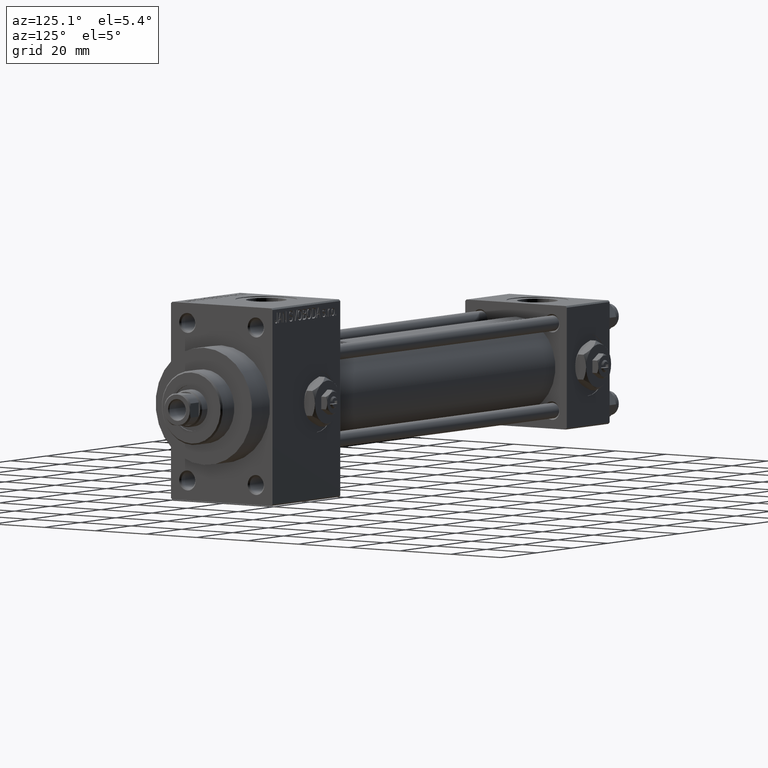
[diagram: clean part render]
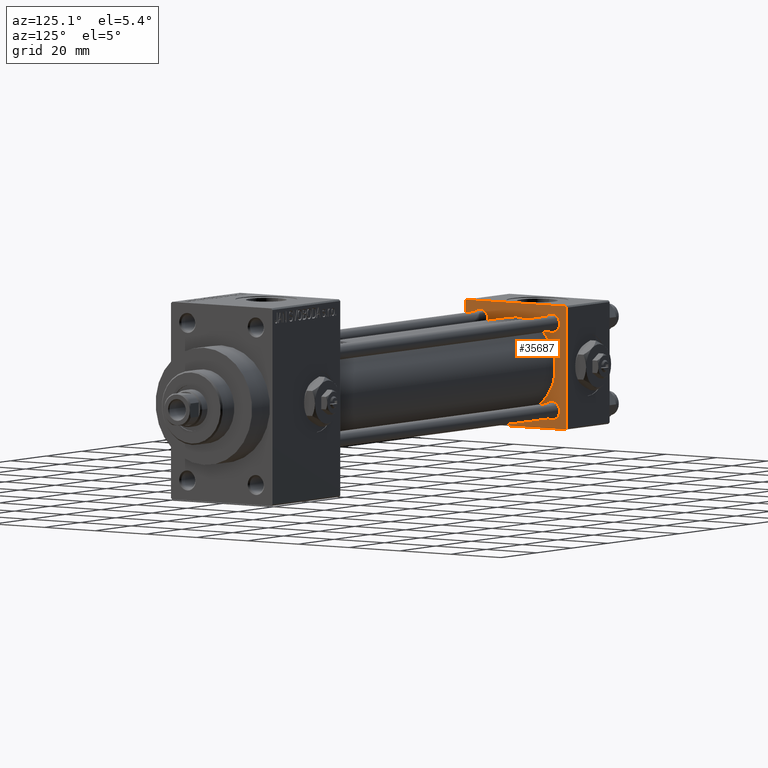
[diagram: same view with one face highlighted and labeled with its STEP entity id]
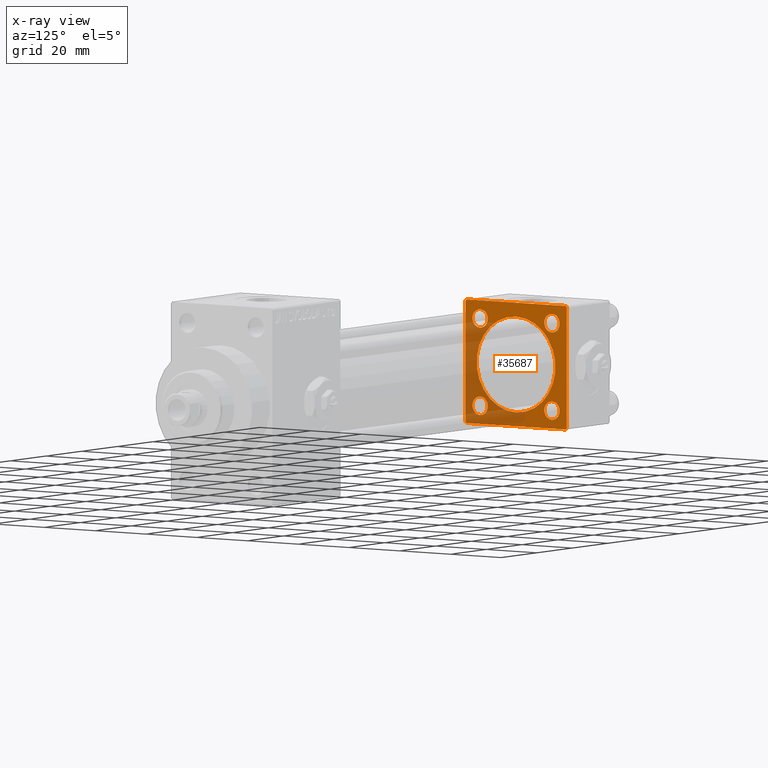
[diagram: x-ray of the same camera — body ghosted, the highlighted face saturated]
A machine part, auxiliary view. The second image highlights one B-rep face of the part: STEP entity #35687.
The next image is the same camera in x-ray: the body ghosted, the highlighted face saturated — about 36% of this face is hidden behind the body in this view.
In plain terms, the highlighted planar face has unit normal (-1, 0, 0).
Its self-contained STEP definition (entity closure, byte-faithful):
#667 = ORIENTED_EDGE ( 'NONE', *, *, #46555, .T. ) ;
#762 = ORIENTED_EDGE ( 'NONE', *, *, #26382, .T. ) ;
#957 = EDGE_CURVE ( 'NONE', #39708, #27179, #2211, .T. ) ;
#1234 = EDGE_CURVE ( 'NONE', #23255, #25400, #17363, .T. ) ;
#2211 = LINE ( 'NONE', #32489, #32335 ) ;
#2429 = CIRCLE ( 'NONE', #15078, 3.000000000000004441 ) ;
#2982 = DIRECTION ( 'NONE',  ( -1.000000000000000000, -0.000000000000000000, -0.000000000000000000 ) ) ;
#3820 = FACE_BOUND ( 'NONE', #35985, .T. ) ;
#3824 = AXIS2_PLACEMENT_3D ( 'NONE', #44102, #6125, #36394 ) ;
#4351 = CARTESIAN_POINT ( 'NONE',  ( 24.00000000000000000, -19.50000000000000711, -20.00000000000000000 ) ) ;
#4491 = CARTESIAN_POINT ( 'NONE',  ( 24.00000000000000000, 14.14999999999999858, 14.15000000000000036 ) ) ;
#4622 = CARTESIAN_POINT ( 'NONE',  ( 24.00000000000000000, 20.00000000000000000, 19.49999999999999289 ) ) ;
#4668 = DIRECTION ( 'NONE',  ( -0.000000000000000000, 0.7071067811865524577, 0.7071067811865426878 ) ) ;
#5135 = DIRECTION ( 'NONE',  ( -1.000000000000000000, -0.000000000000000000, -0.000000000000000000 ) ) ;
#5472 = CARTESIAN_POINT ( 'NONE',  ( 23.99999999999999289, -2.602085213965210642E-15, 15.50000000000000000 ) ) ;
#6125 = DIRECTION ( 'NONE',  ( -1.000000000000000000, -0.000000000000000000, -0.000000000000000000 ) ) ;
#6942 = DIRECTION ( 'NONE',  ( 0.000000000000000000, 0.000000000000000000, 1.000000000000000000 ) ) ;
#7092 = EDGE_LOOP ( 'NONE', ( #17830, #43753 ) ) ;
#7520 = FACE_BOUND ( 'NONE', #24920, .T. ) ;
#7760 = CARTESIAN_POINT ( 'NONE',  ( 24.00000000000000000, 0.000000000000000000, 0.000000000000000000 ) ) ;
#8373 = EDGE_CURVE ( 'NONE', #41519, #47202, #39743, .T. ) ;
#9520 = CARTESIAN_POINT ( 'NONE',  ( 24.00000000000000000, -14.14999999999999503, 17.14999999999998082 ) ) ;
#10051 = CIRCLE ( 'NONE', #10826, 15.50000000000000000 ) ;
#10750 = PLANE ( 'NONE',  #32296 ) ;
#10826 = AXIS2_PLACEMENT_3D ( 'NONE', #30664, #45802, #26928 ) ;
#10867 = EDGE_LOOP ( 'NONE', ( #20250, #17760 ) ) ;
#11307 = VERTEX_POINT ( 'NONE', #31656 ) ;
#11684 = AXIS2_PLACEMENT_3D ( 'NONE', #4491, #19605, #39704 ) ;
#12083 = LINE ( 'NONE', #27230, #47336 ) ;
#12197 = LINE ( 'NONE', #38792, #16416 ) ;
#12659 = CARTESIAN_POINT ( 'NONE',  ( 24.00000000000000000, -20.00000000000000355, 19.49999999999998224 ) ) ;
#13108 = DIRECTION ( 'NONE',  ( 0.000000000000000000, -0.7071067811865425767, 0.7071067811865525687 ) ) ;
#13686 = DIRECTION ( 'NONE',  ( 0.000000000000000000, 0.000000000000000000, 1.000000000000000000 ) ) ;
#13801 = CARTESIAN_POINT ( 'NONE',  ( 24.00000000000000000, 20.00000000000000000, -19.50000000000002132 ) ) ;
#13990 = VERTEX_POINT ( 'NONE', #25319 ) ;
#14114 = DIRECTION ( 'NONE',  ( 0.000000000000000000, 0.000000000000000000, 1.000000000000000000 ) ) ;
#14119 = CARTESIAN_POINT ( 'NONE',  ( 24.00000000000000000, -14.14999999999999503, 14.15000000000000391 ) ) ;
#14446 = EDGE_CURVE ( 'NONE', #25400, #23255, #37539, .T. ) ;
#14668 = CARTESIAN_POINT ( 'NONE',  ( 24.00000000000000000, -14.14999999999999503, 14.15000000000000391 ) ) ;
#14930 = DIRECTION ( 'NONE',  ( 1.000000000000000000, 0.000000000000000000, 0.000000000000000000 ) ) ;
#15078 = AXIS2_PLACEMENT_3D ( 'NONE', #17588, #2982, #14114 ) ;
#15195 = FACE_BOUND ( 'NONE', #7092, .T. ) ;
#16416 = VECTOR ( 'NONE', #17323, 1000.000000000000000 ) ;
#16747 = CARTESIAN_POINT ( 'NONE',  ( 24.00000000000000000, 19.50000000000000711, -20.00000000000000711 ) ) ;
#16943 = VERTEX_POINT ( 'NONE', #26209 ) ;
#17005 = CARTESIAN_POINT ( 'NONE',  ( 24.00000000000000000, -14.14999999999999503, -14.15000000000000391 ) ) ;
#17323 = DIRECTION ( 'NONE',  ( 0.000000000000000000, 0.000000000000000000, -1.000000000000000000 ) ) ;
#17363 = CIRCLE ( 'NONE', #3824, 2.999999999999976463 ) ;
#17376 = ORIENTED_EDGE ( 'NONE', *, *, #30299, .T. ) ;
#17588 = CARTESIAN_POINT ( 'NONE',  ( 24.00000000000000000, 14.14999999999999858, -14.15000000000000036 ) ) ;
#17593 = DIRECTION ( 'NONE',  ( -1.000000000000000000, -0.000000000000000000, -0.000000000000000000 ) ) ;
#17760 = ORIENTED_EDGE ( 'NONE', *, *, #1234, .T. ) ;
#17830 = ORIENTED_EDGE ( 'NONE', *, *, #22577, .F. ) ;
#18918 = DIRECTION ( 'NONE',  ( 0.000000000000000000, 0.000000000000000000, 1.000000000000000000 ) ) ;
#18977 = EDGE_CURVE ( 'NONE', #27578, #24426, #44702, .T. ) ;
#19014 = VERTEX_POINT ( 'NONE', #24888 ) ;
#19127 = VECTOR ( 'NONE', #29719, 1000.000000000000000 ) ;
#19167 = EDGE_CURVE ( 'NONE', #35142, #19014, #46688, .T. ) ;
#19605 = DIRECTION ( 'NONE',  ( -1.000000000000000000, -0.000000000000000000, -0.000000000000000000 ) ) ;
#19656 = DIRECTION ( 'NONE',  ( -1.000000000000000000, -0.000000000000000000, -0.000000000000000000 ) ) ;
#19671 = CIRCLE ( 'NONE', #34746, 3.000000000000000888 ) ;
#20250 = ORIENTED_EDGE ( 'NONE', *, *, #14446, .T. ) ;
#21811 = CARTESIAN_POINT ( 'NONE',  ( 24.00000000000000000, -14.14999999999999503, 11.15000000000002878 ) ) ;
#22275 = AXIS2_PLACEMENT_3D ( 'NONE', #22652, #19656, #18918 ) ;
#22577 = EDGE_CURVE ( 'NONE', #36105, #16943, #30547, .T. ) ;
#22652 = CARTESIAN_POINT ( 'NONE',  ( 24.00000000000000000, 14.14999999999999858, -14.15000000000000036 ) ) ;
#22754 = ORIENTED_EDGE ( 'NONE', *, *, #36580, .F. ) ;
#23255 = VERTEX_POINT ( 'NONE', #39820 ) ;
#23929 = LINE ( 'NONE', #4351, #34498 ) ;
#23983 = DIRECTION ( 'NONE',  ( 0.000000000000000000, 0.000000000000000000, 1.000000000000000000 ) ) ;
#24426 = VERTEX_POINT ( 'NONE', #9520 ) ;
#24470 = CIRCLE ( 'NONE', #43498, 2.999999999999976463 ) ;
#24888 = CARTESIAN_POINT ( 'NONE',  ( 24.00000000000000000, -20.00000000000000355, 19.49999999999998224 ) ) ;
#24920 = EDGE_LOOP ( 'NONE', ( #39085, #36219 ) ) ;
#25319 = CARTESIAN_POINT ( 'NONE',  ( 24.00000000000000000, -19.50000000000000711, -20.00000000000000000 ) ) ;
#25400 = VERTEX_POINT ( 'NONE', #32929 ) ;
#25556 = DIRECTION ( 'NONE',  ( 0.000000000000000000, 0.000000000000000000, 1.000000000000000000 ) ) ;
#25604 = EDGE_CURVE ( 'NONE', #16943, #36105, #10051, .T. ) ;
#25961 = CIRCLE ( 'NONE', #11684, 3.000000000000000888 ) ;
#26006 = EDGE_CURVE ( 'NONE', #39708, #45678, #12197, .T. ) ;
#26209 = CARTESIAN_POINT ( 'NONE',  ( 23.99999999999999289, -7.038826752868131828E-16, -15.50000000000000000 ) ) ;
#26238 = LINE ( 'NONE', #41390, #19127 ) ;
#26382 = EDGE_CURVE ( 'NONE', #36647, #45678, #12083, .T. ) ;
#26928 = DIRECTION ( 'NONE',  ( 0.000000000000000000, 0.000000000000000000, 1.000000000000000000 ) ) ;
#27179 = VERTEX_POINT ( 'NONE', #32557 ) ;
#27209 = CARTESIAN_POINT ( 'NONE',  ( 24.00000000000000000, 14.14999999999999858, 11.14999999999999858 ) ) ;
#27230 = CARTESIAN_POINT ( 'NONE',  ( 24.00000000000000000, 20.00000000000000000, -19.50000000000002132 ) ) ;
#27536 = CARTESIAN_POINT ( 'NONE',  ( 24.00000000000000000, -19.49999999999999289, 19.99999999999998934 ) ) ;
#27578 = VERTEX_POINT ( 'NONE', #21811 ) ;
#27812 = DIRECTION ( 'NONE',  ( -0.000000000000000000, -0.7071067811865500152, -0.7071067811865451302 ) ) ;
#28853 = EDGE_LOOP ( 'NONE', ( #29270, #667 ) ) ;
#28885 = EDGE_CURVE ( 'NONE', #19014, #47683, #33924, .T. ) ;
#29270 = ORIENTED_EDGE ( 'NONE', *, *, #8373, .T. ) ;
#29383 = FACE_BOUND ( 'NONE', #10867, .T. ) ;
#29628 = AXIS2_PLACEMENT_3D ( 'NONE', #14668, #47959, #13686 ) ;
#29719 = DIRECTION ( 'NONE',  ( 0.000000000000000000, -1.000000000000000000, -2.602085213965210149E-16 ) ) ;
#30299 = EDGE_CURVE ( 'NONE', #47683, #13990, #23929, .T. ) ;
#30463 = VECTOR ( 'NONE', #45350, 1000.000000000000000 ) ;
#30547 = CIRCLE ( 'NONE', #43244, 15.50000000000000000 ) ;
#30582 = ORIENTED_EDGE ( 'NONE', *, *, #28885, .T. ) ;
#30664 = CARTESIAN_POINT ( 'NONE',  ( 23.99999999999999289, -2.602085213965210642E-15, 0.000000000000000000 ) ) ;
#31555 = VECTOR ( 'NONE', #42352, 1000.000000000000000 ) ;
#31656 = CARTESIAN_POINT ( 'NONE',  ( 24.00000000000000000, 14.14999999999999858, 17.15000000000000568 ) ) ;
#32296 = AXIS2_PLACEMENT_3D ( 'NONE', #7760, #37570, #44539 ) ;
#32335 = VECTOR ( 'NONE', #13108, 999.9999999999998863 ) ;
#32489 = CARTESIAN_POINT ( 'NONE',  ( 24.00000000000000000, 19.50000000000000000, 20.00000000000000000 ) ) ;
#32557 = CARTESIAN_POINT ( 'NONE',  ( 24.00000000000000000, 19.50000000000000000, 20.00000000000000000 ) ) ;
#32929 = CARTESIAN_POINT ( 'NONE',  ( 24.00000000000000000, -14.14999999999999503, -17.14999999999998082 ) ) ;
#33815 = CARTESIAN_POINT ( 'NONE',  ( 23.99999999999999289, -2.602085213965210642E-15, 0.000000000000000000 ) ) ;
#33924 = LINE ( 'NONE', #44374, #30463 ) ;
#33989 = CARTESIAN_POINT ( 'NONE',  ( 24.00000000000000000, -20.00000000000000000, -19.49999999999999645 ) ) ;
#34498 = VECTOR ( 'NONE', #38842, 1000.000000000000000 ) ;
#34746 = AXIS2_PLACEMENT_3D ( 'NONE', #37233, #17593, #6942 ) ;
#35129 = AXIS2_PLACEMENT_3D ( 'NONE', #17005, #5135, #23983 ) ;
#35142 = VERTEX_POINT ( 'NONE', #27536 ) ;
#35182 = EDGE_CURVE ( 'NONE', #11307, #38007, #25961, .T. ) ;
#35687 = ADVANCED_FACE ( 'NONE', ( #29383, #36158, #3820, #7520, #15195, #37087 ), #10750, .F. ) ;
#35985 = EDGE_LOOP ( 'NONE', ( #46051, #39803 ) ) ;
#36105 = VERTEX_POINT ( 'NONE', #5472 ) ;
#36158 = FACE_BOUND ( 'NONE', #28853, .T. ) ;
#36219 = ORIENTED_EDGE ( 'NONE', *, *, #35182, .T. ) ;
#36394 = DIRECTION ( 'NONE',  ( 0.000000000000000000, 0.000000000000000000, 1.000000000000000000 ) ) ;
#36580 = EDGE_CURVE ( 'NONE', #36647, #13990, #45334, .T. ) ;
#36647 = VERTEX_POINT ( 'NONE', #16747 ) ;
#36732 = DIRECTION ( 'NONE',  ( -1.000000000000000000, -0.000000000000000000, -0.000000000000000000 ) ) ;
#36794 = CARTESIAN_POINT ( 'NONE',  ( 24.00000000000000000, 14.14999999999999858, -11.14999999999999858 ) ) ;
#37087 = FACE_OUTER_BOUND ( 'NONE', #41104, .T. ) ;
#37233 = CARTESIAN_POINT ( 'NONE',  ( 24.00000000000000000, 14.14999999999999858, 14.15000000000000036 ) ) ;
#37327 = ORIENTED_EDGE ( 'NONE', *, *, #26006, .F. ) ;
#37539 = CIRCLE ( 'NONE', #35129, 2.999999999999976463 ) ;
#37555 = EDGE_CURVE ( 'NONE', #24426, #27578, #24470, .T. ) ;
#37570 = DIRECTION ( 'NONE',  ( -1.000000000000000000, 0.000000000000000000, -0.000000000000000000 ) ) ;
#37618 = ORIENTED_EDGE ( 'NONE', *, *, #19167, .T. ) ;
#37695 = EDGE_CURVE ( 'NONE', #38007, #11307, #19671, .T. ) ;
#38007 = VERTEX_POINT ( 'NONE', #27209 ) ;
#38379 = CARTESIAN_POINT ( 'NONE',  ( 24.00000000000000000, 20.00000000000000000, -20.00000000000000711 ) ) ;
#38792 = CARTESIAN_POINT ( 'NONE',  ( 24.00000000000000000, 20.00000000000000000, 20.00000000000000000 ) ) ;
#38842 = DIRECTION ( 'NONE',  ( 0.000000000000000000, 0.7071067811865401342, -0.7071067811865549002 ) ) ;
#39085 = ORIENTED_EDGE ( 'NONE', *, *, #37695, .T. ) ;
#39466 = ORIENTED_EDGE ( 'NONE', *, *, #48019, .T. ) ;
#39704 = DIRECTION ( 'NONE',  ( 0.000000000000000000, 0.000000000000000000, 1.000000000000000000 ) ) ;
#39708 = VERTEX_POINT ( 'NONE', #4622 ) ;
#39743 = CIRCLE ( 'NONE', #22275, 3.000000000000004441 ) ;
#39803 = ORIENTED_EDGE ( 'NONE', *, *, #37555, .T. ) ;
#39820 = CARTESIAN_POINT ( 'NONE',  ( 24.00000000000000000, -14.14999999999999503, -11.15000000000002878 ) ) ;
#41104 = EDGE_LOOP ( 'NONE', ( #22754, #762, #37327, #47393, #39466, #37618, #30582, #17376 ) ) ;
#41390 = CARTESIAN_POINT ( 'NONE',  ( 24.00000000000000000, 20.00000000000000000, 20.00000000000000000 ) ) ;
#41519 = VERTEX_POINT ( 'NONE', #45710 ) ;
#42352 = DIRECTION ( 'NONE',  ( 0.000000000000000000, -1.000000000000000000, 1.734723475976807094E-16 ) ) ;
#43244 = AXIS2_PLACEMENT_3D ( 'NONE', #33815, #14930, #45725 ) ;
#43498 = AXIS2_PLACEMENT_3D ( 'NONE', #14119, #36732, #25556 ) ;
#43753 = ORIENTED_EDGE ( 'NONE', *, *, #25604, .F. ) ;
#44102 = CARTESIAN_POINT ( 'NONE',  ( 24.00000000000000000, -14.14999999999999503, -14.15000000000000391 ) ) ;
#44374 = CARTESIAN_POINT ( 'NONE',  ( 24.00000000000000000, -20.00000000000000355, 19.99999999999998934 ) ) ;
#44539 = DIRECTION ( 'NONE',  ( -0.000000000000000000, 0.000000000000000000, 1.000000000000000000 ) ) ;
#44702 = CIRCLE ( 'NONE', #29628, 2.999999999999976463 ) ;
#45334 = LINE ( 'NONE', #38379, #31555 ) ;
#45350 = DIRECTION ( 'NONE',  ( 0.000000000000000000, 8.673617379884036705E-17, -1.000000000000000000 ) ) ;
#45678 = VERTEX_POINT ( 'NONE', #13801 ) ;
#45710 = CARTESIAN_POINT ( 'NONE',  ( 24.00000000000000000, 14.14999999999999858, -17.15000000000000568 ) ) ;
#45725 = DIRECTION ( 'NONE',  ( 0.000000000000000000, 0.000000000000000000, 1.000000000000000000 ) ) ;
#45802 = DIRECTION ( 'NONE',  ( 1.000000000000000000, 0.000000000000000000, 0.000000000000000000 ) ) ;
#46051 = ORIENTED_EDGE ( 'NONE', *, *, #18977, .T. ) ;
#46555 = EDGE_CURVE ( 'NONE', #47202, #41519, #2429, .T. ) ;
#46688 = LINE ( 'NONE', #12659, #47832 ) ;
#47202 = VERTEX_POINT ( 'NONE', #36794 ) ;
#47336 = VECTOR ( 'NONE', #4668, 1000.000000000000000 ) ;
#47393 = ORIENTED_EDGE ( 'NONE', *, *, #957, .T. ) ;
#47683 = VERTEX_POINT ( 'NONE', #33989 ) ;
#47832 = VECTOR ( 'NONE', #27812, 1000.000000000000114 ) ;
#47959 = DIRECTION ( 'NONE',  ( -1.000000000000000000, -0.000000000000000000, -0.000000000000000000 ) ) ;
#48019 = EDGE_CURVE ( 'NONE', #27179, #35142, #26238, .T. ) ;